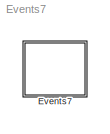
MODEL Events7
KIND model
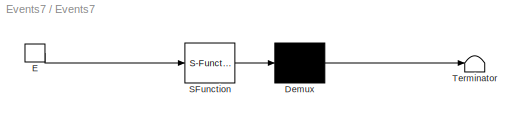
BLOCK [SubSystem] Events7
  MaskDescription = Stateflow diagram
  MaskDisplay = plot(sf('Private','sfblk','xIcon'),sf('Private','sfblk','yIcon'));text(0.5,0,sf('Private', 'sfblk', 'tIcon'),'HorizontalAl','Center','VerticalAl','Bottom');
  MaskIconFrame = off
  MaskIconOpaque = off
  MaskIconRotate = none
  MaskIconUnits = autoscale
  MaskSelfModifiable = on
  MaskType = Stateflow
  MinAlgLoopOccurrences = off
  Ports = [0, 0, 0, 1]
  RTWSystemCode = Auto
  TreatAsAtomicUnit = off
BLOCK [Demux] Events7/ Demux 
  Outputs = 1
  Ports = [1, 1]
BLOCK [S-Function] Events7/ SFunction 
  FunctionName = sf_sfun
  PortCounts = [1 1]
  Ports = [1, 1]
  Tag = Stateflow S-Function Events7 1
BLOCK [Terminator] Events7/ Terminator 
BLOCK [TriggerPort] Events7/E
  Ports = [0, 1]
  ShowOutputPort = on
  TriggerType = either
LINE Events7/ Demux :1 -> Events7/ Terminator :1
LINE Events7/ SFunction :1 -> Events7/ Demux :1
LINE Events7/E:1 -> Events7/ SFunction :1
CHART Events7 states=6 transitions=6
  STATE_LABEL 'T1'
  STATE_LABEL 'A'
  STATE_LABEL 'B'
  STATE_LABEL 'T2'
  STATE_LABEL 'C'
  STATE_LABEL 'D'
